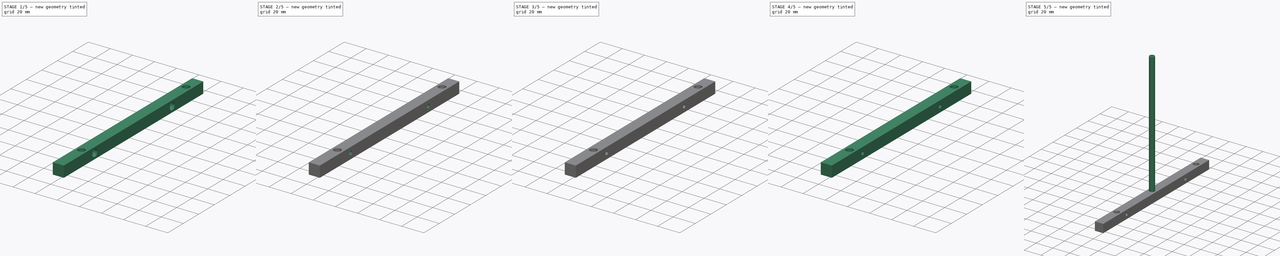
[diagram: build sequence overview — one tinted view per stage of 5, left to right]
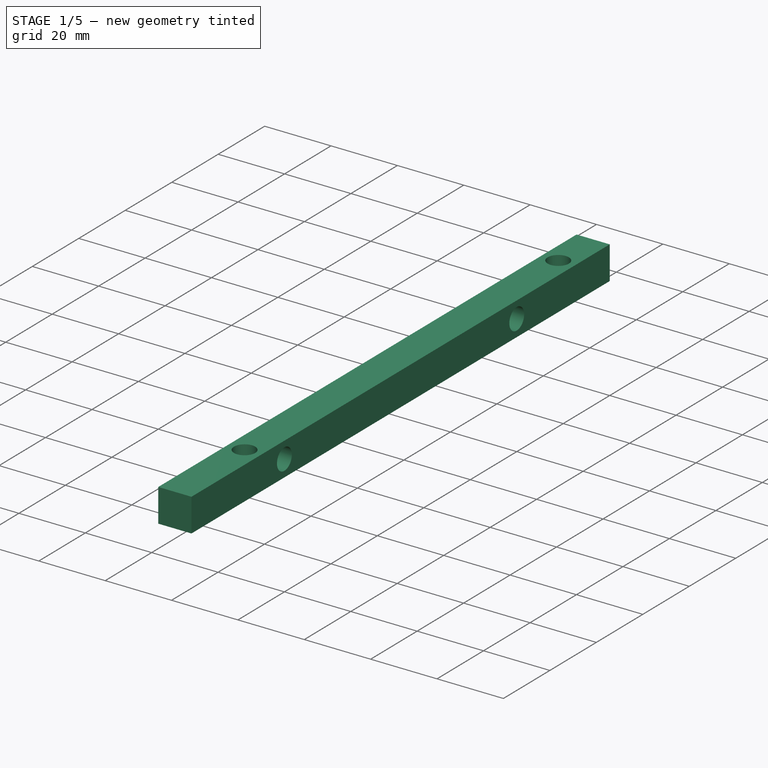
[diagram: stage 1 of 5 — iso view after this stage's code; geometry added in this stage tinted green]
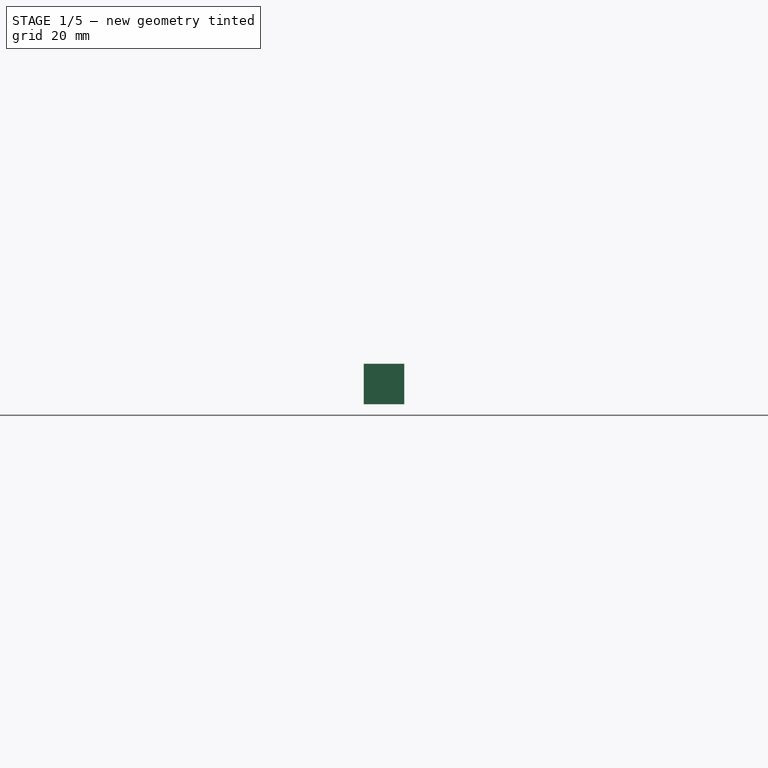
[diagram: stage 1 of 5 — front view after this stage's code; geometry added in this stage tinted green]
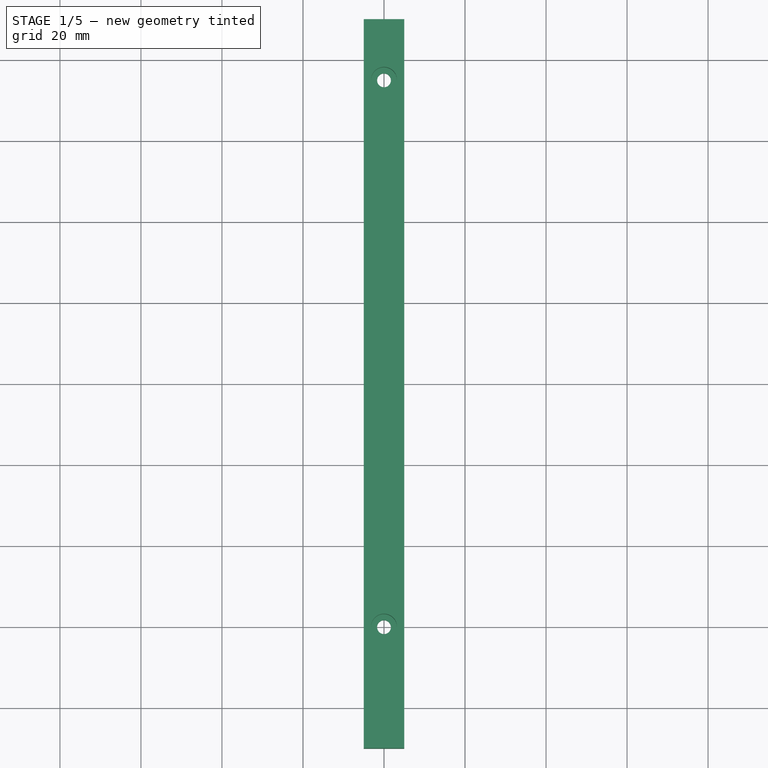
[diagram: stage 1 of 5 — top view after this stage's code; geometry added in this stage tinted green]
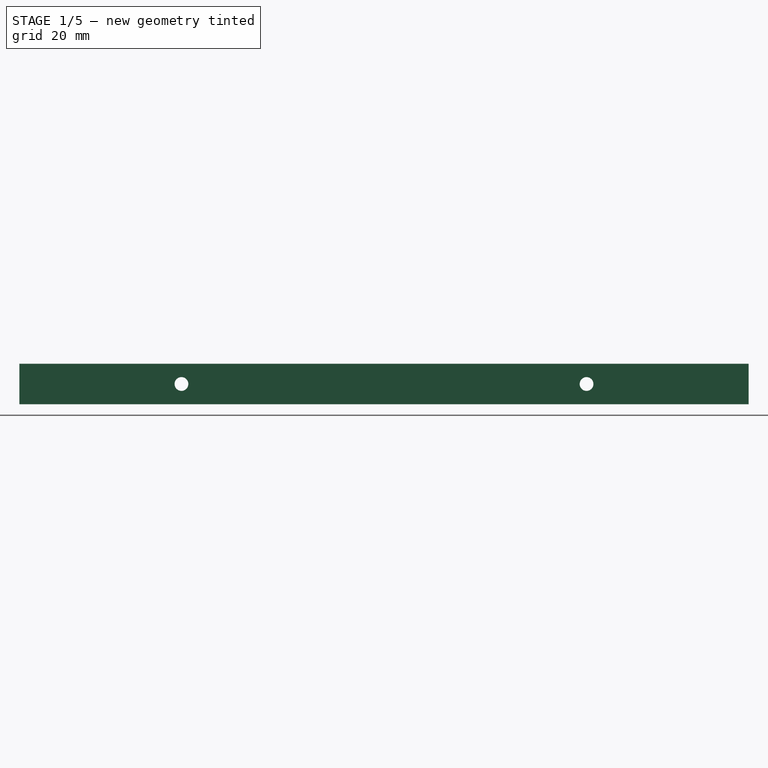
[diagram: stage 1 of 5 — right view after this stage's code; geometry added in this stage tinted green]
FCSTD DOCUMENT  (FreeCAD 0.17R13519 (Git))
Label: LunTaiJia-jwei-1.0
License: All rights reserved
LicenseURL: http://en.wikipedia.org/wiki/All_rights_reserved
objects: Sketcher::SketchObject×25, PartDesign::Pocket×19, PartDesign::Mirrored×8, PartDesign::Pad×6, PartDesign::Body×6
note: 89 computed .brp shape members not serialized (recipe doc carries the construction recipe); baked Part::Feature solids carry a one-line shape summary decoded from their .brp

FEATURE [Sketcher::SketchObject] Sketch016
  MapMode = 5
  Support = -> [XY_Plane005]
  sketch-geometry (4):
    g0: LineSegment StartX=-5 StartY=90 StartZ=0 EndX=5 EndY=90 EndZ=0
    g1: LineSegment StartX=5 StartY=90 StartZ=0 EndX=5 EndY=-90 EndZ=0
    g2: LineSegment StartX=5 StartY=-90 StartZ=0 EndX=-5 EndY=-90 EndZ=0
    g3: LineSegment StartX=-5 StartY=-90 StartZ=0 EndX=-5 EndY=90 EndZ=0
  constraints (12):
    c: Coincident(g0,g1)
    c: Coincident(g1,g2)
    c: Coincident(g2,g3)
    c: Coincident(g3,g0)
    c: Horizontal(g0)
    c: Horizontal(g2)
    c: Vertical(g1)
    c: Vertical(g3)
    c: DistanceY(g3,g3) = 180
    c: DistanceY(g-1,g0) = 90
    c: DistanceX(g0,g0) = 10
    c: DistanceX(g-2,g0) = 5
FEATURE [PartDesign::Pad] Pad005
  Length = 10
  Length2 = 100
  Profile = -> Sketch016
  Type = 0
FEATURE [Sketcher::SketchObject] Sketch014
  ExternalGeometry = -> [Pad005]
  MapMode = 5
  Placement = pos=(0,0,10) rot=(0,0,1;0rad)
  Support = -> [Pad005]
  sketch-geometry (2):
    g0: Circle CenterX=0 CenterY=-60 CenterZ=0 NormalX=0 NormalY=0 NormalZ=1 AngleXU=0 Radius=1.7
    g1: Circle CenterX=0 CenterY=75 CenterZ=0 NormalX=0 NormalY=0 NormalZ=1 AngleXU=0 Radius=1.7
  constraints (6):
    c: Radius(g0) = 1.7
    c: PointOnObject(g0,g-2)
    c: Distance(g0,g-4) = 30
    c: Radius(g1) = 1.7
    c: PointOnObject(g1,g-2)
    c: Distance(g1,g0) = 135
FEATURE [PartDesign::Pocket] Pocket009
  BaseFeature = -> Pad005
  Length = 5
  Length2 = 100
  Profile = -> Sketch014
  Type = 1
FEATURE [Sketcher::SketchObject] Sketch015
  ExternalGeometry = -> [Pocket009]
  MapMode = 5
  Placement = pos=(0,0,10) rot=(0,0,1;0rad)
  Support = -> [Pocket009]
  sketch-geometry (2):
    g0: Circle CenterX=0 CenterY=75 CenterZ=0 NormalX=0 NormalY=0 NormalZ=1 AngleXU=0 Radius=3.2
    g1: Circle CenterX=0 CenterY=-60 CenterZ=0 NormalX=0 NormalY=0 NormalZ=1 AngleXU=0 Radius=3.2
  constraints (4):
    c: Radius(g0) = 3.2
    c: Coincident(g0,g-3)
    c: Radius(g1) = 3.2
    c: Coincident(g1,g-4)
FEATURE [PartDesign::Pocket] Pocket010
  BaseFeature = -> Pocket009
  Length = 7
  Length2 = 100
  Profile = -> Sketch015
  Type = 0
FEATURE [PartDesign::Body] Body004  label="立柱-R1"
  Group = -> [Sketch013,Pad004,Sketch011,Pocket007,Sketch012,Pocket008,Sketch021,Pocket015,Mirrored004,Sketch022,Pocket016,Mirrored005]
  Origin = -> Origin004
  Placement = pos=(40,0,10) rot=(0,1,0;3.14159rad)
  Tip = -> Mirrored005
FEATURE [Sketcher::SketchObject] Sketch023
  ExternalGeometry = -> [Pocket010]
  MapMode = 5
  Placement = pos=(5,0,0) rot=(0.57735,0.57735,0.57735;2.0944rad)
  Support = -> [Pocket010]
  sketch-geometry (1):
    g0: Circle CenterX=-50 CenterY=5 CenterZ=0 NormalX=0 NormalY=0 NormalZ=1 AngleXU=0 Radius=1.7
  constraints (3):
    c: Radius(g0) = 1.7
    c: Distance(g0,g-4) = 5
    c: Distance(g0,g-3) = 40
FEATURE [PartDesign::Pocket] Pocket017
  BaseFeature = -> Pocket010
  Length = 5
  Length2 = 100
  Profile = -> Sketch023
  Type = 1
FEATURE [PartDesign::Mirrored] Mirrored006
  BaseFeature = -> Pocket017
  MirrorPlane = -> Sketch023 [V_Axis]
  Originals = -> [Pocket017]
FEATURE [Sketcher::SketchObject] Sketch024
  ExternalGeometry = -> [Mirrored006]
  MapMode = 5
  Placement = pos=(5,0,0) rot=(0.57735,0.57735,0.57735;2.0944rad)
  Support = -> [Mirrored006]
  sketch-geometry (1):
    g0: Circle CenterX=-50 CenterY=5 CenterZ=0 NormalX=0 NormalY=0 NormalZ=1 AngleXU=0 Radius=3.2
  constraints (2):
    c: Radius(g0) = 3.2
    c: Coincident(g0,g-3)
FEATURE [PartDesign::Pocket] Pocket018
  BaseFeature = -> Mirrored006
  Length = 7
  Length2 = 100
  Profile = -> Sketch024
  Type = 0
FEATURE [PartDesign::Mirrored] Mirrored007
  BaseFeature = -> Pocket018
  MirrorPlane = -> Sketch024 [V_Axis]
  Originals = -> [Pocket018]
FEATURE [PartDesign::Body] Body005  label="立柱-R2"
  Group = -> [Sketch016,Pad005,Sketch014,Pocket009,Sketch015,Pocket010,Sketch023,Pocket017,Mirrored006,Sketch024,Pocket018,Mirrored007]
  Origin = -> Origin005
  Placement = pos=(60,0,10) rot=(0,1,0;3.14159rad)
  Tip = -> Mirrored007
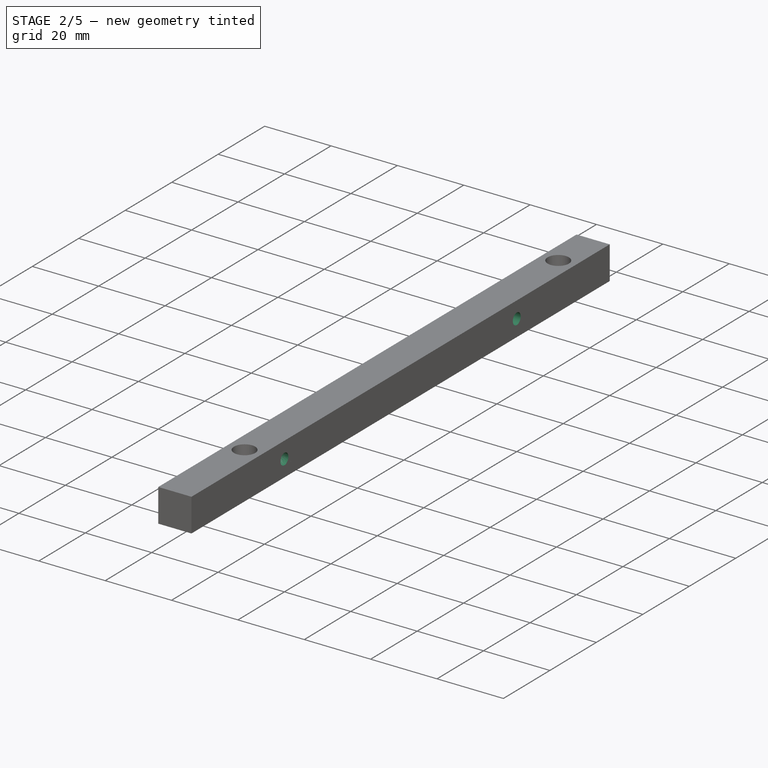
[diagram: stage 2 of 5 — iso view after this stage's code; geometry added in this stage tinted green]
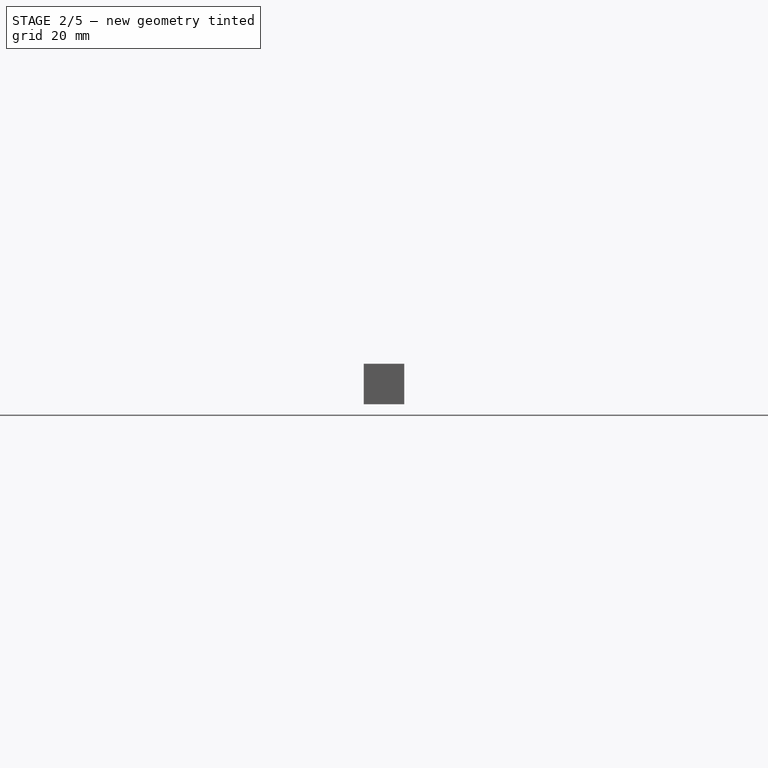
[diagram: stage 2 of 5 — front view after this stage's code; geometry added in this stage tinted green]
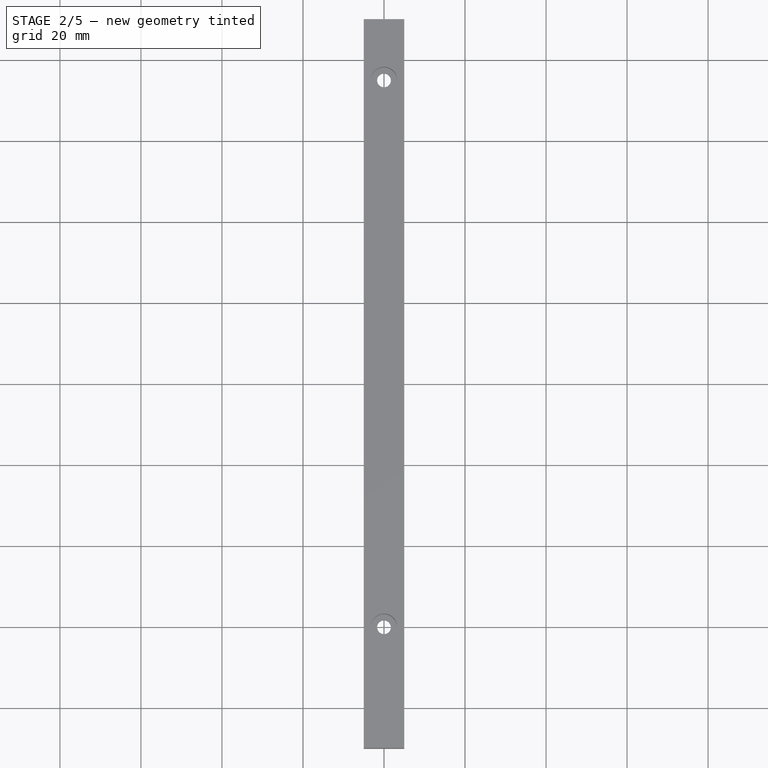
[diagram: stage 2 of 5 — top view after this stage's code; geometry added in this stage tinted green]
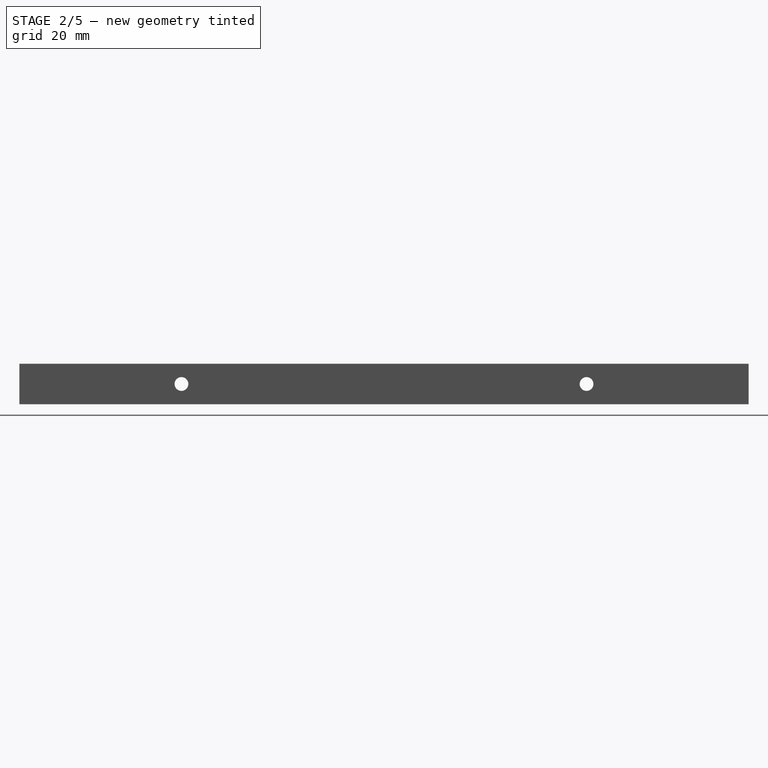
[diagram: stage 2 of 5 — right view after this stage's code; geometry added in this stage tinted green]
FEATURE [Sketcher::SketchObject] Sketch013
  MapMode = 5
  Support = -> [XY_Plane004]
  sketch-geometry (4):
    g0: LineSegment StartX=-5 StartY=90 StartZ=0 EndX=5 EndY=90 EndZ=0
    g1: LineSegment StartX=5 StartY=90 StartZ=0 EndX=5 EndY=-90 EndZ=0
    g2: LineSegment StartX=5 StartY=-90 StartZ=0 EndX=-5 EndY=-90 EndZ=0
    g3: LineSegment StartX=-5 StartY=-90 StartZ=0 EndX=-5 EndY=90 EndZ=0
  constraints (12):
    c: Coincident(g0,g1)
    c: Coincident(g1,g2)
    c: Coincident(g2,g3)
    c: Coincident(g3,g0)
    c: Horizontal(g0)
    c: Horizontal(g2)
    c: Vertical(g1)
    c: Vertical(g3)
    c: DistanceY(g3,g3) = 180
    c: DistanceY(g-1,g0) = 90
    c: DistanceX(g0,g0) = 10
    c: DistanceX(g-2,g0) = 5
FEATURE [PartDesign::Pad] Pad004
  Length = 10
  Length2 = 100
  Profile = -> Sketch013
  Type = 0
FEATURE [Sketcher::SketchObject] Sketch011
  ExternalGeometry = -> [Pad004]
  MapMode = 5
  Placement = pos=(0,0,10) rot=(0,0,1;0rad)
  Support = -> [Pad004]
  sketch-geometry (2):
    g0: Circle CenterX=0 CenterY=-60 CenterZ=0 NormalX=0 NormalY=0 NormalZ=1 AngleXU=0 Radius=1.7
    g1: Circle CenterX=0 CenterY=75 CenterZ=0 NormalX=0 NormalY=0 NormalZ=1 AngleXU=0 Radius=1.7
  constraints (6):
    c: Radius(g0) = 1.7
    c: PointOnObject(g0,g-2)
    c: Distance(g0,g-4) = 30
    c: Radius(g1) = 1.7
    c: PointOnObject(g1,g-2)
    c: Distance(g1,g0) = 135
FEATURE [PartDesign::Pocket] Pocket007
  BaseFeature = -> Pad004
  Length = 5
  Length2 = 100
  Profile = -> Sketch011
  Type = 1
FEATURE [Sketcher::SketchObject] Sketch012
  ExternalGeometry = -> [Pocket007]
  MapMode = 5
  Placement = pos=(0,0,10) rot=(0,0,1;0rad)
  Support = -> [Pocket007]
  sketch-geometry (2):
    g0: Circle CenterX=0 CenterY=75 CenterZ=0 NormalX=0 NormalY=0 NormalZ=1 AngleXU=0 Radius=3.2
    g1: Circle CenterX=0 CenterY=-60 CenterZ=0 NormalX=0 NormalY=0 NormalZ=1 AngleXU=0 Radius=3.2
  constraints (4):
    c: Radius(g0) = 3.2
    c: Coincident(g0,g-3)
    c: Radius(g1) = 3.2
    c: Coincident(g1,g-4)
FEATURE [PartDesign::Pocket] Pocket008
  BaseFeature = -> Pocket007
  Length = 7
  Length2 = 100
  Profile = -> Sketch012
  Type = 0
FEATURE [PartDesign::Body] Body003  label="立柱-L2"
  Group = -> [Sketch010,Pad003,Sketch008,Pocket005,Sketch009,Pocket006,Sketch019,Pocket013,Mirrored002,Sketch020,Pocket014,Mirrored003]
  Origin = -> Origin003
  Placement = pos=(20,0,0) rot=(0,0,1;0rad)
  Tip = -> Mirrored003
FEATURE [Sketcher::SketchObject] Sketch021
  ExternalGeometry = -> [Pocket008]
  MapMode = 5
  Placement = pos=(-5,0,0) rot=(0.57735,-0.57735,-0.57735;2.0944rad)
  Support = -> [Pocket008]
  sketch-geometry (1):
    g0: Circle CenterX=-50 CenterY=5 CenterZ=0 NormalX=0 NormalY=0 NormalZ=1 AngleXU=0 Radius=1.7
  constraints (3):
    c: Radius(g0) = 1.7
    c: Distance(g0,g-4) = 5
    c: Distance(g0,g-3) = 40
FEATURE [PartDesign::Pocket] Pocket015
  BaseFeature = -> Pocket008
  Length = 5
  Length2 = 100
  Profile = -> Sketch021
  Type = 1
FEATURE [PartDesign::Mirrored] Mirrored004
  BaseFeature = -> Pocket015
  MirrorPlane = -> Sketch021 [V_Axis]
  Originals = -> [Pocket015]
FEATURE [Sketcher::SketchObject] Sketch022
  ExternalGeometry = -> [Mirrored004]
  MapMode = 5
  Placement = pos=(-5,0,0) rot=(0.57735,-0.57735,-0.57735;2.0944rad)
  Support = -> [Mirrored004]
  sketch-geometry (1):
    g0: Circle CenterX=-50 CenterY=5 CenterZ=0 NormalX=0 NormalY=0 NormalZ=1 AngleXU=0 Radius=3.2
  constraints (2):
    c: Radius(g0) = 3.2
    c: Coincident(g0,g-3)
FEATURE [PartDesign::Pocket] Pocket016
  BaseFeature = -> Mirrored004
  Length = 7
  Length2 = 100
  Profile = -> Sketch022
  Type = 0
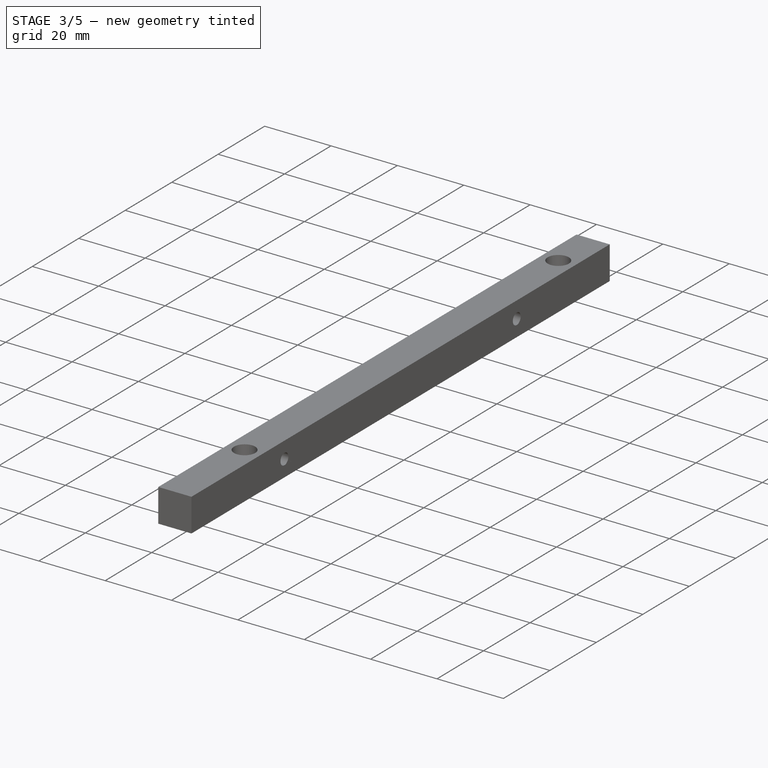
[diagram: stage 3 of 5 — iso view after this stage's code; geometry added in this stage tinted green]
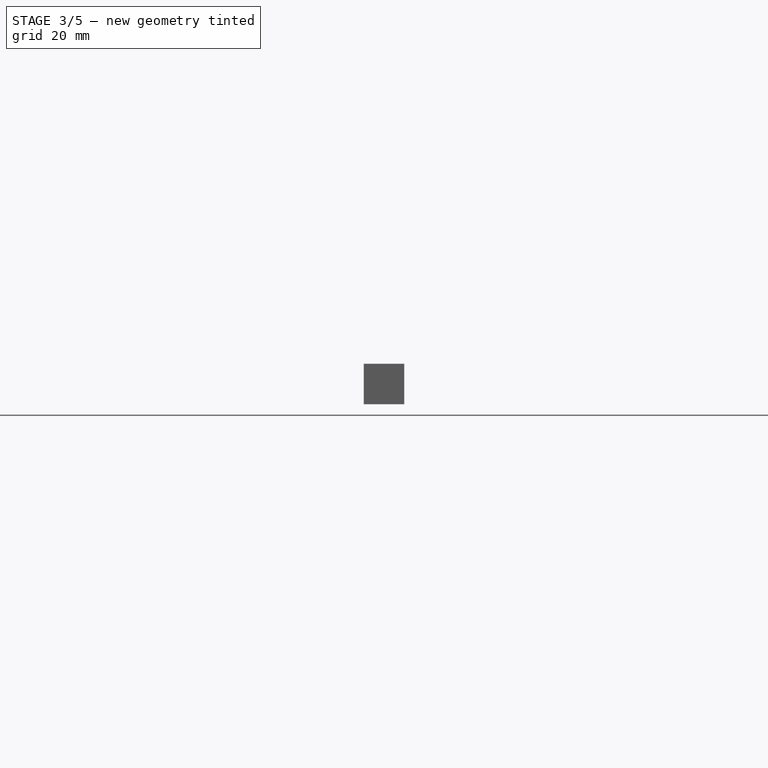
[diagram: stage 3 of 5 — front view after this stage's code; geometry added in this stage tinted green]
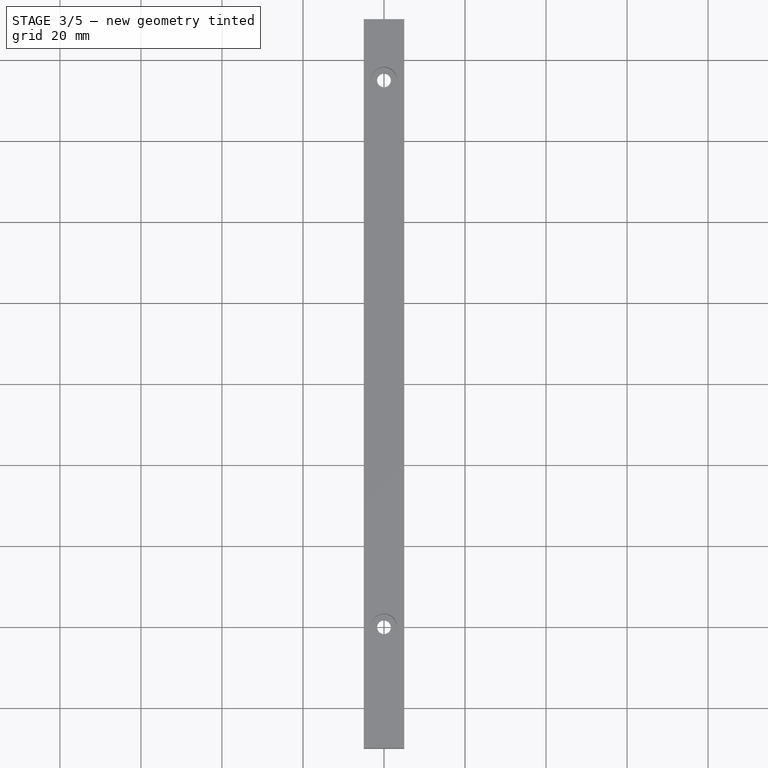
[diagram: stage 3 of 5 — top view after this stage's code; geometry added in this stage tinted green]
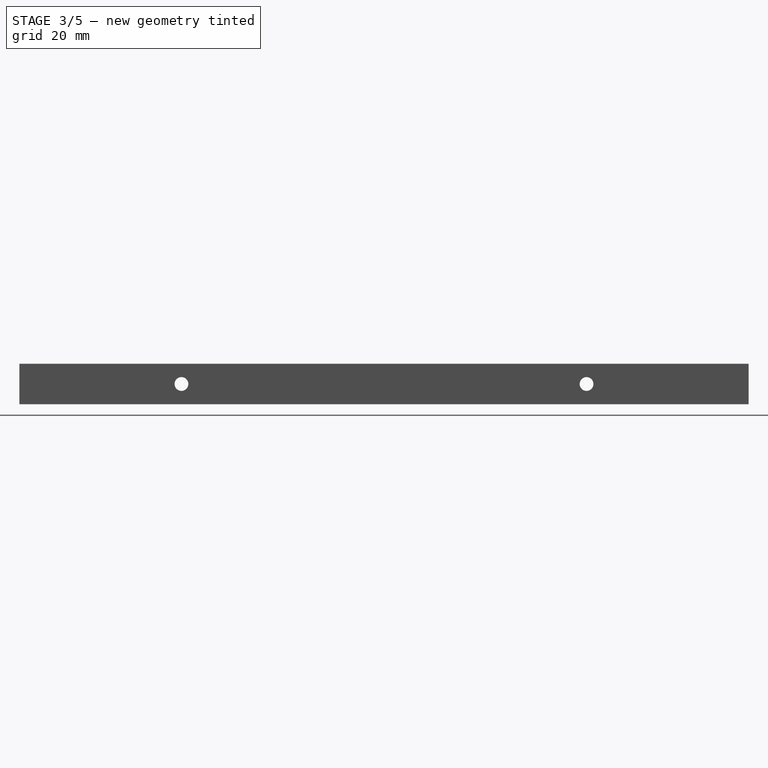
[diagram: stage 3 of 5 — right view after this stage's code; geometry added in this stage tinted green]
FEATURE [PartDesign::Body] Body002  label="竖梁"
  Group = -> [Sketch006,Pad002,Sketch007,Pocket004]
  Origin = -> Origin002
  Placement = pos=(80,0,0) rot=(0,0,1;0rad)
  Tip = -> Pocket004
FEATURE [Sketcher::SketchObject] Sketch010
  MapMode = 5
  Support = -> [XY_Plane003]
  sketch-geometry (4):
    g0: LineSegment StartX=-5 StartY=90 StartZ=0 EndX=5 EndY=90 EndZ=0
    g1: LineSegment StartX=5 StartY=90 StartZ=0 EndX=5 EndY=-90 EndZ=0
    g2: LineSegment StartX=5 StartY=-90 StartZ=0 EndX=-5 EndY=-90 EndZ=0
    g3: LineSegment StartX=-5 StartY=-90 StartZ=0 EndX=-5 EndY=90 EndZ=0
  constraints (12):
    c: Coincident(g0,g1)
    c: Coincident(g1,g2)
    c: Coincident(g2,g3)
    c: Coincident(g3,g0)
    c: Horizontal(g0)
    c: Horizontal(g2)
    c: Vertical(g1)
    c: Vertical(g3)
    c: DistanceY(g3,g3) = 180
    c: DistanceY(g-1,g0) = 90
    c: DistanceX(g0,g0) = 10
    c: DistanceX(g-2,g0) = 5
FEATURE [PartDesign::Pad] Pad003
  Length = 10
  Length2 = 100
  Profile = -> Sketch010
  Type = 0
FEATURE [Sketcher::SketchObject] Sketch008
  ExternalGeometry = -> [Pad003]
  MapMode = 5
  Placement = pos=(0,0,10) rot=(0,0,1;0rad)
  Support = -> [Pad003]
  sketch-geometry (2):
    g0: Circle CenterX=0 CenterY=-60 CenterZ=0 NormalX=0 NormalY=0 NormalZ=1 AngleXU=0 Radius=1.7
    g1: Circle CenterX=0 CenterY=75 CenterZ=0 NormalX=0 NormalY=0 NormalZ=1 AngleXU=0 Radius=1.7
  constraints (6):
    c: Radius(g0) = 1.7
    c: PointOnObject(g0,g-2)
    c: Distance(g0,g-4) = 30
    c: Radius(g1) = 1.7
    c: PointOnObject(g1,g-2)
    c: Distance(g1,g0) = 135
FEATURE [PartDesign::Pocket] Pocket005
  BaseFeature = -> Pad003
  Length = 5
  Length2 = 100
  Profile = -> Sketch008
  Type = 1
FEATURE [Sketcher::SketchObject] Sketch009
  ExternalGeometry = -> [Pocket005]
  MapMode = 5
  Placement = pos=(0,0,10) rot=(0,0,1;0rad)
  Support = -> [Pocket005]
  sketch-geometry (2):
    g0: Circle CenterX=0 CenterY=75 CenterZ=0 NormalX=0 NormalY=0 NormalZ=1 AngleXU=0 Radius=3.2
    g1: Circle CenterX=0 CenterY=-60 CenterZ=0 NormalX=0 NormalY=0 NormalZ=1 AngleXU=0 Radius=3.2
  constraints (4):
    c: Radius(g0) = 3.2
    c: Coincident(g0,g-3)
    c: Radius(g1) = 3.2
    c: Coincident(g1,g-4)
FEATURE [PartDesign::Pocket] Pocket006
  BaseFeature = -> Pocket005
  Length = 7
  Length2 = 100
  Profile = -> Sketch009
  Type = 0
FEATURE [PartDesign::Body] Body  label="立柱-L1"
  Group = -> [Sketch,Pad,Sketch001,Pocket,Sketch002,Pocket001,Sketch017,Pocket011,Mirrored,Sketch018,Pocket012,Mirrored001]
  Origin = -> Origin
  Tip = -> Mirrored001
FEATURE [Sketcher::SketchObject] Sketch019
  ExternalGeometry = -> [Pocket006]
  MapMode = 5
  Placement = pos=(-5,0,0) rot=(0.57735,-0.57735,-0.57735;2.0944rad)
  Support = -> [Pocket006]
  sketch-geometry (1):
    g0: Circle CenterX=-50 CenterY=5 CenterZ=0 NormalX=0 NormalY=0 NormalZ=1 AngleXU=0 Radius=1.7
  constraints (3):
    c: Radius(g0) = 1.7
    c: Distance(g0,g-5) = 5
    c: Distance(g0,g-3) = 40
FEATURE [PartDesign::Pocket] Pocket013
  BaseFeature = -> Pocket006
  Length = 5
  Length2 = 100
  Profile = -> Sketch019
  Type = 1
FEATURE [PartDesign::Mirrored] Mirrored002
  BaseFeature = -> Pocket013
  MirrorPlane = -> Sketch019 [V_Axis]
  Originals = -> [Pocket013]
FEATURE [Sketcher::SketchObject] Sketch020
  ExternalGeometry = -> [Mirrored002]
  MapMode = 5
  Placement = pos=(-5,0,0) rot=(0.57735,-0.57735,-0.57735;2.0944rad)
  Support = -> [Mirrored002]
  sketch-geometry (1):
    g0: Circle CenterX=-50 CenterY=5 CenterZ=0 NormalX=0 NormalY=0 NormalZ=1 AngleXU=0 Radius=3.2
  constraints (2):
    c: Radius(g0) = 3.2
    c: Coincident(g0,g-3)
FEATURE [PartDesign::Pocket] Pocket014
  BaseFeature = -> Mirrored002
  Length = 7
  Length2 = 100
  Profile = -> Sketch020
  Type = 0
FEATURE [PartDesign::Mirrored] Mirrored005
  BaseFeature = -> Pocket016
  MirrorPlane = -> Sketch022 [V_Axis]
  Originals = -> [Pocket016]
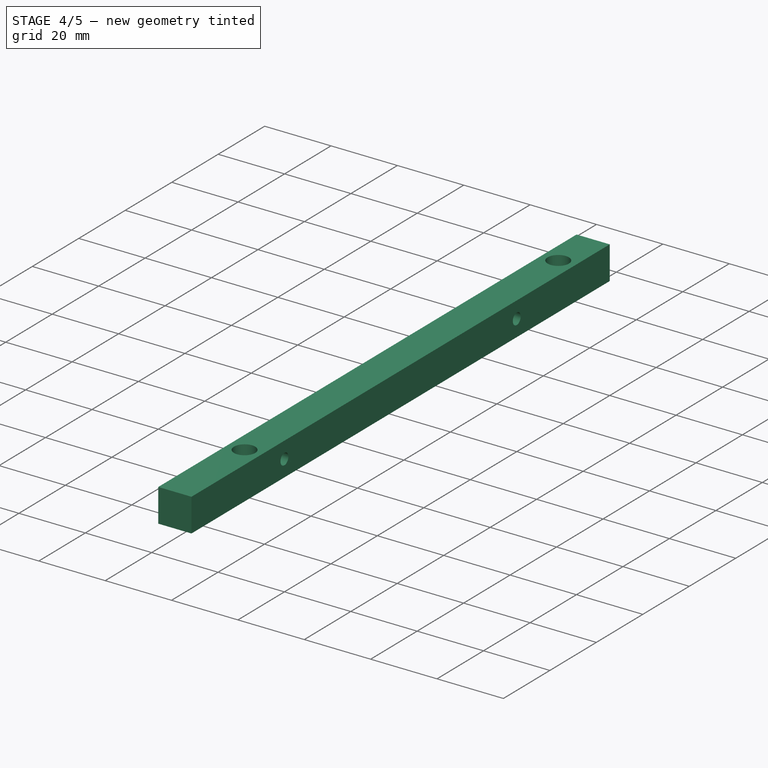
[diagram: stage 4 of 5 — iso view after this stage's code; geometry added in this stage tinted green]
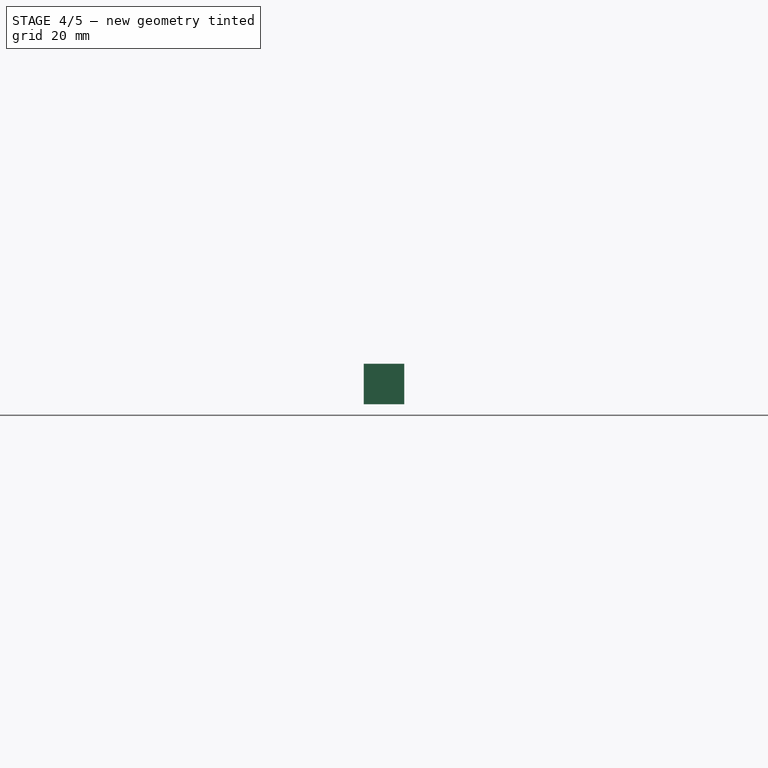
[diagram: stage 4 of 5 — front view after this stage's code; geometry added in this stage tinted green]
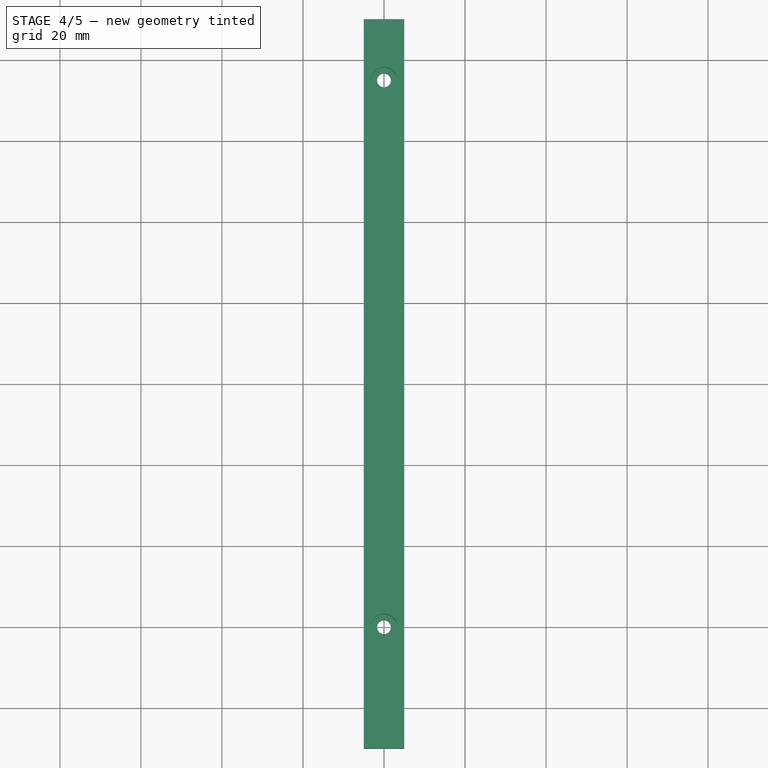
[diagram: stage 4 of 5 — top view after this stage's code; geometry added in this stage tinted green]
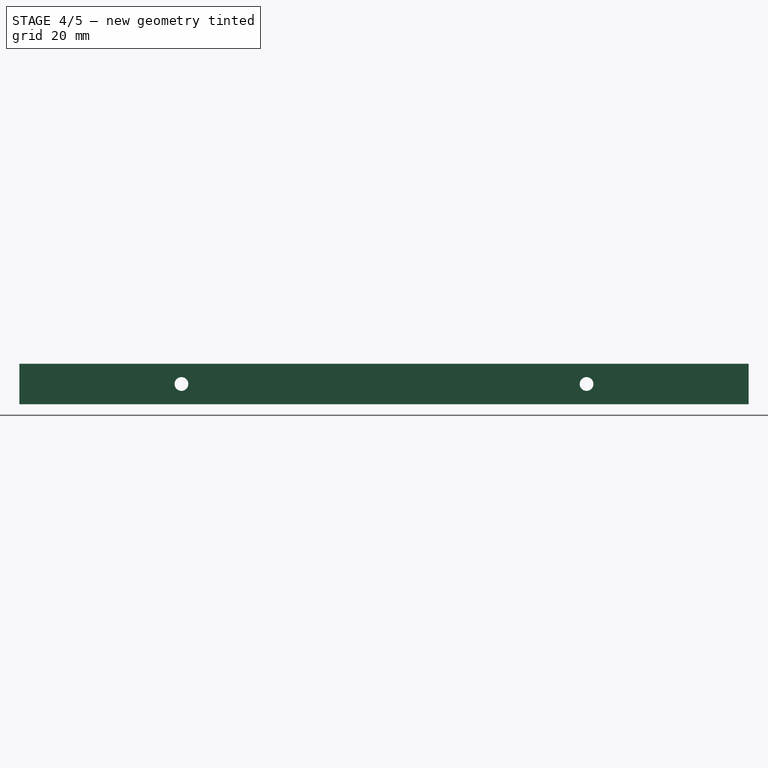
[diagram: stage 4 of 5 — right view after this stage's code; geometry added in this stage tinted green]
FEATURE [Sketcher::SketchObject] Sketch
  MapMode = 5
  Support = -> [XY_Plane]
  sketch-geometry (4):
    g0: LineSegment StartX=-5 StartY=90 StartZ=0 EndX=5 EndY=90 EndZ=0
    g1: LineSegment StartX=5 StartY=90 StartZ=0 EndX=5 EndY=-90 EndZ=0
    g2: LineSegment StartX=5 StartY=-90 StartZ=0 EndX=-5 EndY=-90 EndZ=0
    g3: LineSegment StartX=-5 StartY=-90 StartZ=0 EndX=-5 EndY=90 EndZ=0
  constraints (12):
    c: Coincident(g0,g1)
    c: Coincident(g1,g2)
    c: Coincident(g2,g3)
    c: Coincident(g3,g0)
    c: Horizontal(g0)
    c: Horizontal(g2)
    c: Vertical(g1)
    c: Vertical(g3)
    c: DistanceY(g3,g3) = 180
    c: DistanceY(g-1,g0) = 90
    c: DistanceX(g0,g0) = 10
    c: DistanceX(g-2,g0) = 5
FEATURE [PartDesign::Pad] Pad
  Length = 10
  Length2 = 100
  Profile = -> Sketch
  Type = 0
FEATURE [Sketcher::SketchObject] Sketch001
  ExternalGeometry = -> [Pad]
  MapMode = 5
  Placement = pos=(0,0,10) rot=(0,0,1;0rad)
  Support = -> [Pad]
  sketch-geometry (2):
    g0: Circle CenterX=0 CenterY=-60 CenterZ=0 NormalX=0 NormalY=0 NormalZ=1 AngleXU=0 Radius=1.7
    g1: Circle CenterX=0 CenterY=75 CenterZ=0 NormalX=0 NormalY=0 NormalZ=1 AngleXU=0 Radius=1.7
  constraints (6):
    c: Radius(g0) = 1.7
    c: PointOnObject(g0,g-2)
    c: Distance(g0,g-4) = 30
    c: Radius(g1) = 1.7
    c: PointOnObject(g1,g-2)
    c: Distance(g1,g0) = 135
FEATURE [PartDesign::Pocket] Pocket
  BaseFeature = -> Pad
  Length = 5
  Length2 = 100
  Profile = -> Sketch001
  Type = 1
FEATURE [Sketcher::SketchObject] Sketch002
  ExternalGeometry = -> [Pocket]
  MapMode = 5
  Placement = pos=(0,0,10) rot=(0,0,1;0rad)
  Support = -> [Pocket]
  sketch-geometry (2):
    g0: Circle CenterX=0 CenterY=75 CenterZ=0 NormalX=0 NormalY=0 NormalZ=1 AngleXU=0 Radius=3.2
    g1: Circle CenterX=0 CenterY=-60 CenterZ=0 NormalX=0 NormalY=0 NormalZ=1 AngleXU=0 Radius=3.2
  constraints (4):
    c: Radius(g0) = 3.2
    c: Coincident(g0,g-3)
    c: Radius(g1) = 3.2
    c: Coincident(g1,g-4)
FEATURE [PartDesign::Pocket] Pocket001
  BaseFeature = -> Pocket
  Length = 7
  Length2 = 100
  Profile = -> Sketch002
  Type = 0
FEATURE [Sketcher::SketchObject] Sketch017
  ExternalGeometry = -> [Pocket001]
  MapMode = 5
  Placement = pos=(5,0,0) rot=(0.57735,0.57735,0.57735;2.0944rad)
  Support = -> [Pocket001]
  sketch-geometry (1):
    g0: Circle CenterX=-50 CenterY=5 CenterZ=0 NormalX=0 NormalY=0 NormalZ=1 AngleXU=0 Radius=1.7
  constraints (3):
    c: Radius(g0) = 1.7
    c: Distance(g0,g-5) = 5
    c: Distance(g0,g-3) = 40
FEATURE [PartDesign::Pocket] Pocket011
  BaseFeature = -> Pocket001
  Length = 5
  Length2 = 100
  Profile = -> Sketch017
  Type = 1
FEATURE [PartDesign::Mirrored] Mirrored
  BaseFeature = -> Pocket011
  MirrorPlane = -> Sketch017 [V_Axis]
  Originals = -> [Pocket011]
FEATURE [PartDesign::Mirrored] Mirrored003
  BaseFeature = -> Pocket014
  MirrorPlane = -> Sketch020 [V_Axis]
  Originals = -> [Pocket014]
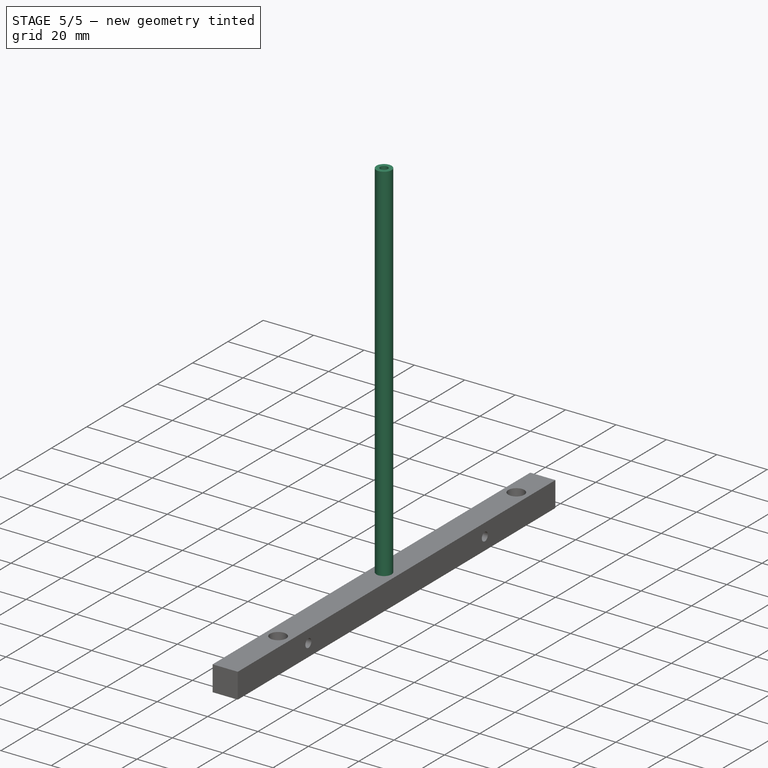
[diagram: stage 5 of 5 — iso view after this stage's code; geometry added in this stage tinted green]
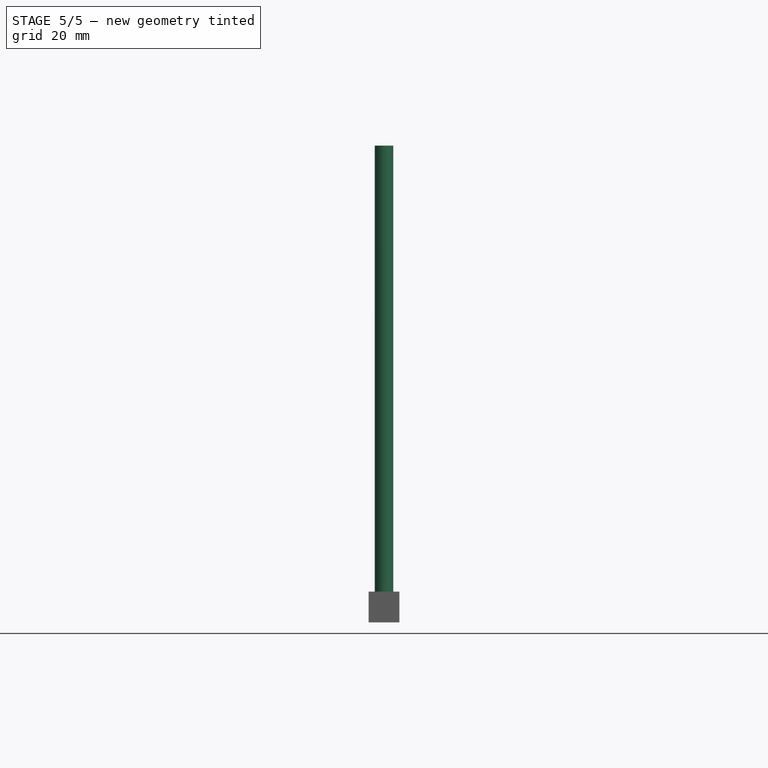
[diagram: stage 5 of 5 — front view after this stage's code; geometry added in this stage tinted green]
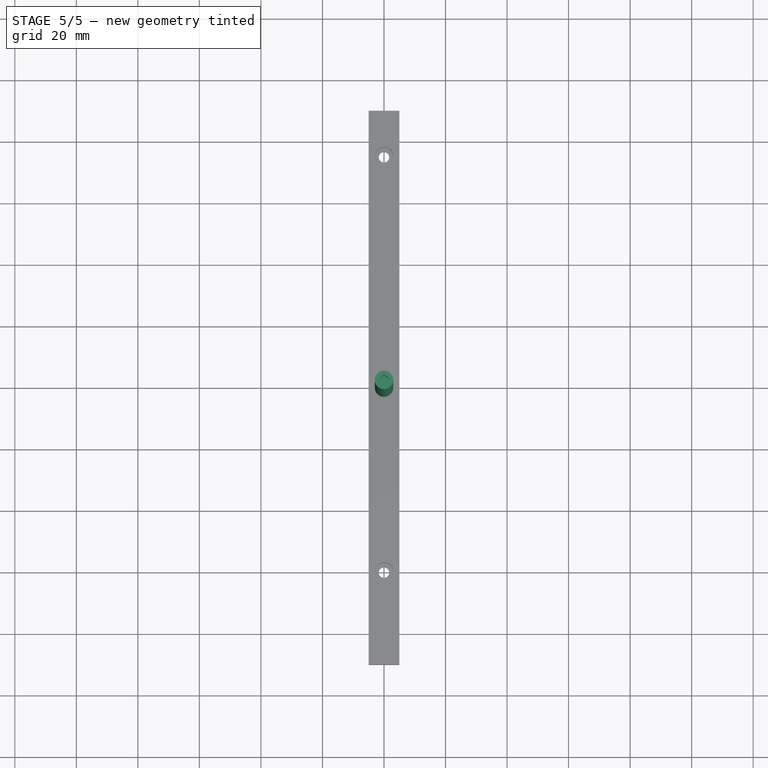
[diagram: stage 5 of 5 — top view after this stage's code; geometry added in this stage tinted green]
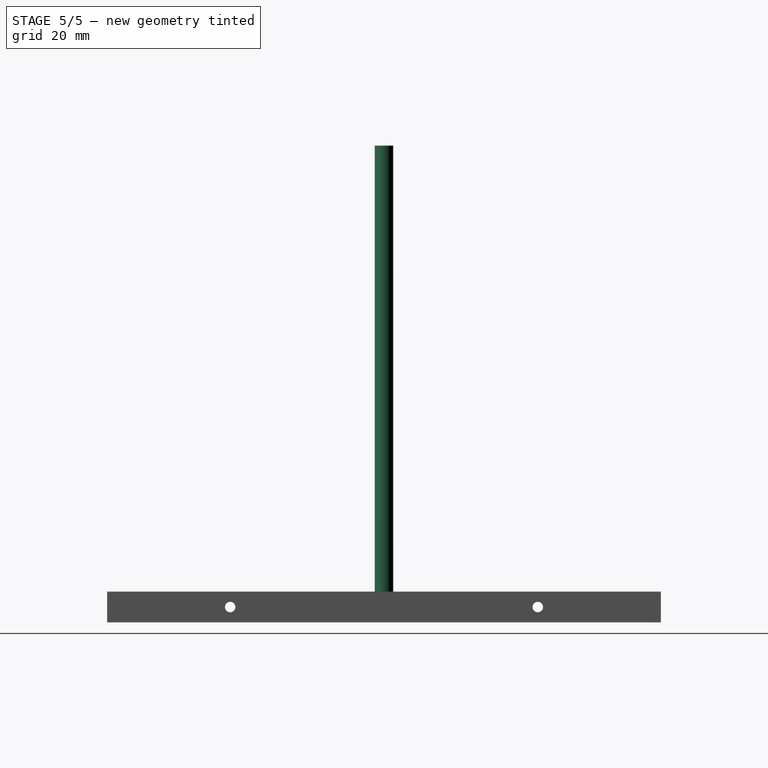
[diagram: stage 5 of 5 — right view after this stage's code; geometry added in this stage tinted green]
FEATURE [Sketcher::SketchObject] Sketch003
  MapMode = 5
  Support = -> [XY_Plane001]
  sketch-geometry (1):
    g0: Circle CenterX=0 CenterY=0 CenterZ=0 NormalX=0 NormalY=0 NormalZ=1 AngleXU=0 Radius=3
  constraints (2):
    c: Radius(g0) = 3
    c: Coincident(g0,g-1)
FEATURE [PartDesign::Pad] Pad001
  Length = 155
  Length2 = 100
  Profile = -> Sketch003
  Type = 0
FEATURE [Sketcher::SketchObject] Sketch004
  MapMode = 5
  Placement = pos=(0,0,155) rot=(0,0,1;0rad)
  Support = -> [Pad001]
  sketch-geometry (1):
    g0: Circle CenterX=0 CenterY=0 CenterZ=0 NormalX=0 NormalY=0 NormalZ=1 AngleXU=0 Radius=1.5
  constraints (2):
    c: Radius(g0) = 1.5
    c: Coincident(g0,g-1)
FEATURE [PartDesign::Pocket] Pocket002
  BaseFeature = -> Pad001
  Length = 15
  Length2 = 100
  Profile = -> Sketch004
  Type = 0
FEATURE [Sketcher::SketchObject] Sketch005
  MapMode = 5
  Placement = pos=(0,0,0) rot=(1,0,0;3.14159rad)
  Support = -> [Pocket002]
  sketch-geometry (1):
    g0: Circle CenterX=0 CenterY=0 CenterZ=0 NormalX=0 NormalY=0 NormalZ=1 AngleXU=0 Radius=1.5
  constraints (2):
    c: Radius(g0) = 1.5
    c: Coincident(g0,g-1)
FEATURE [PartDesign::Pocket] Pocket003
  BaseFeature = -> Pocket002
  Length = 15
  Length2 = 100
  Profile = -> Sketch005
  Type = 0
FEATURE [PartDesign::Body] Body001  label="横梁"
  Group = -> [Sketch003,Pad001,Sketch004,Pocket002,Sketch005,Pocket003]
  Origin = -> Origin001
  Placement = pos=(80,20,0) rot=(0,0,1;0rad)
  Tip = -> Pocket003
FEATURE [Sketcher::SketchObject] Sketch006
  MapMode = 5
  Support = -> [XY_Plane002]
  sketch-geometry (1):
    g0: Circle CenterX=0 CenterY=0 CenterZ=0 NormalX=0 NormalY=0 NormalZ=1 AngleXU=0 Radius=3
  constraints (2):
    c: Radius(g0) = 3
    c: Coincident(g0,g-1)
FEATURE [PartDesign::Pad] Pad002
  Length = 70
  Length2 = 100
  Profile = -> Sketch006
  Type = 0
FEATURE [Sketcher::SketchObject] Sketch007
  MapMode = 5
  Placement = pos=(0,0,0) rot=(1,0,0;3.14159rad)
  Support = -> [Pad002]
  sketch-geometry (1):
    g0: Circle CenterX=0 CenterY=0 CenterZ=0 NormalX=0 NormalY=0 NormalZ=1 AngleXU=0 Radius=1.5
  constraints (2):
    c: Radius(g0) = 1.5
    c: Coincident(g0,g-1)
FEATURE [PartDesign::Pocket] Pocket004
  BaseFeature = -> Pad002
  Length = 15
  Length2 = 100
  Profile = -> Sketch007
  Type = 1
FEATURE [Sketcher::SketchObject] Sketch018
  ExternalGeometry = -> [Mirrored]
  MapMode = 5
  Placement = pos=(5,0,0) rot=(0.57735,0.57735,0.57735;2.0944rad)
  Support = -> [Mirrored]
  sketch-geometry (1):
    g0: Circle CenterX=-50 CenterY=5 CenterZ=0 NormalX=0 NormalY=0 NormalZ=1 AngleXU=0 Radius=3.2
  constraints (2):
    c: Radius(g0) = 3.2
    c: Coincident(g0,g-3)
FEATURE [PartDesign::Pocket] Pocket012
  BaseFeature = -> Mirrored
  Length = 7
  Length2 = 100
  Profile = -> Sketch018
  Type = 0
FEATURE [PartDesign::Mirrored] Mirrored001
  BaseFeature = -> Pocket012
  MirrorPlane = -> Sketch018 [V_Axis]
  Originals = -> [Pocket012]
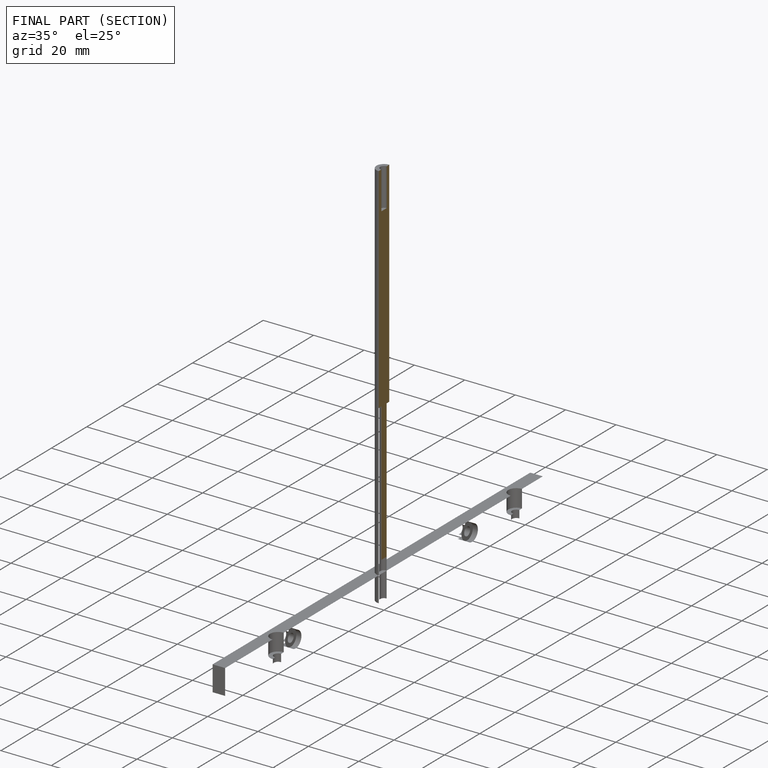
[diagram: finished part — half-section view (interior)]
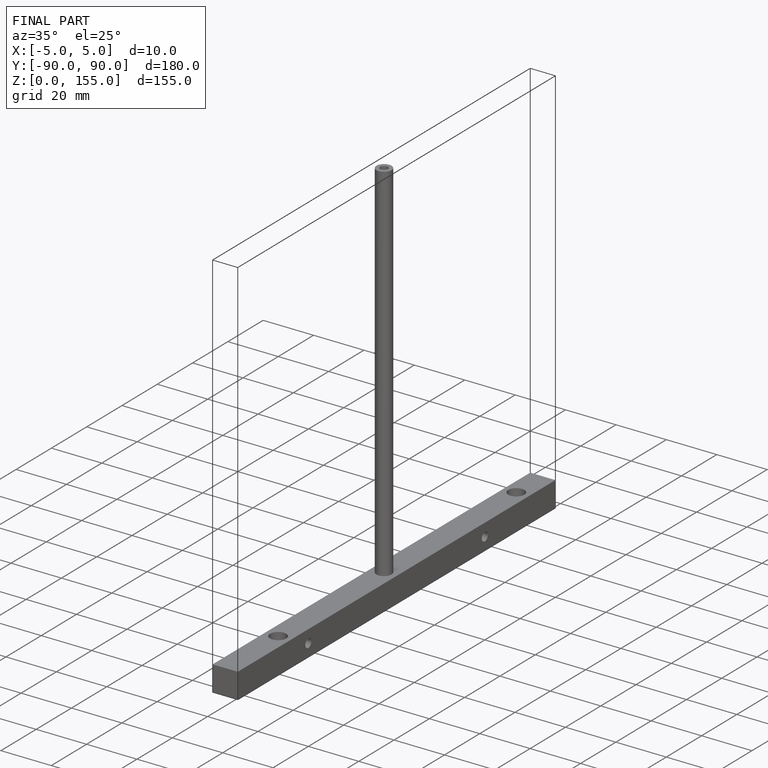
[diagram: finished part — iso view with bounding-box wireframe]
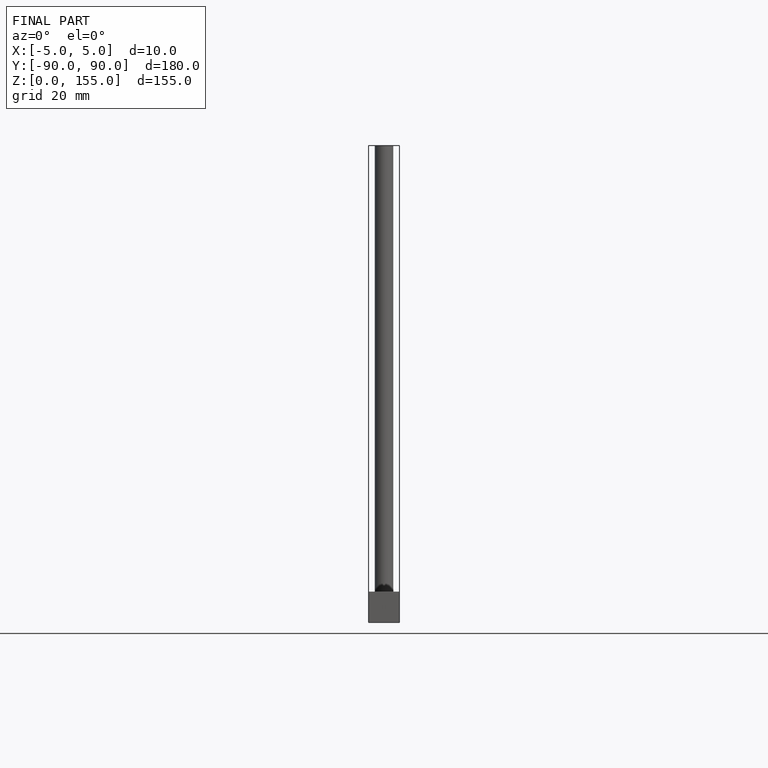
[diagram: finished part — front view with bounding-box wireframe]
